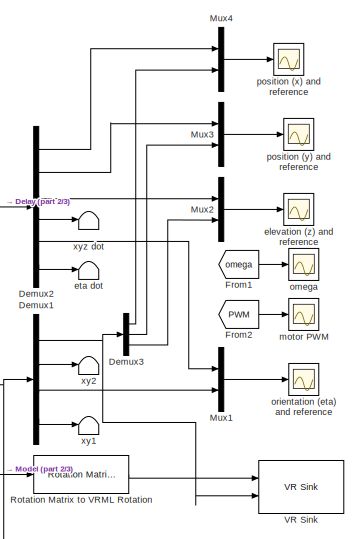
[diagram: root canvas - part 1/3, middle right region]
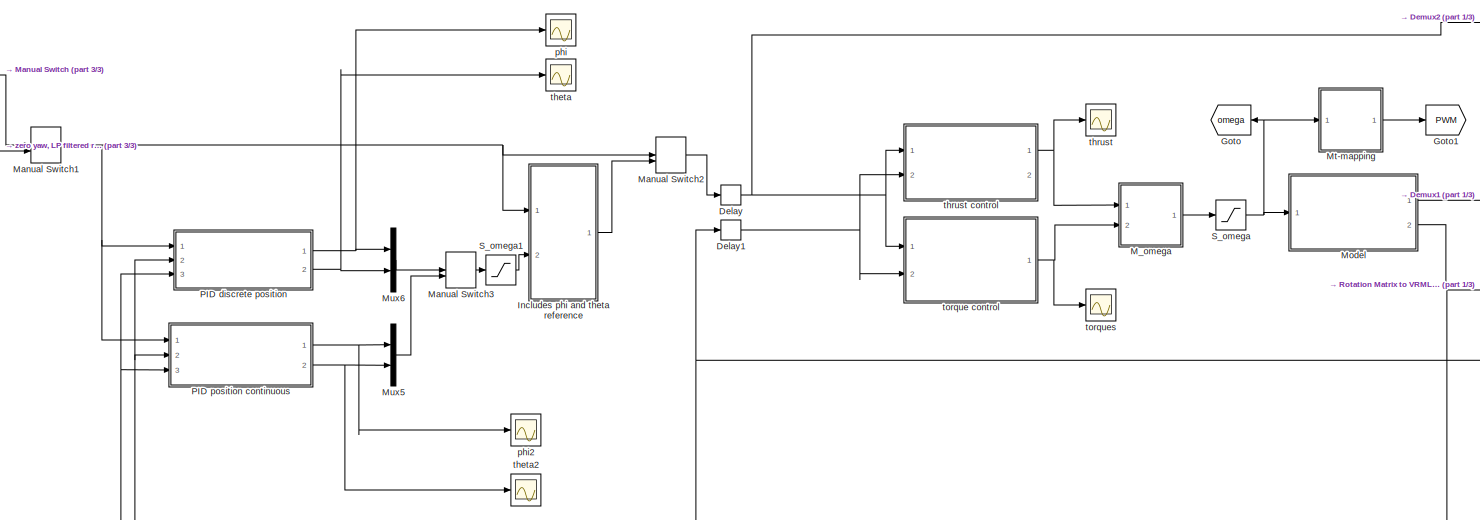
[diagram: root canvas - part 2/3, full width, middle band]
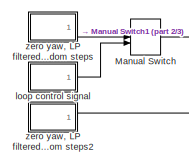
[diagram: root canvas - part 3/3, middle left region]
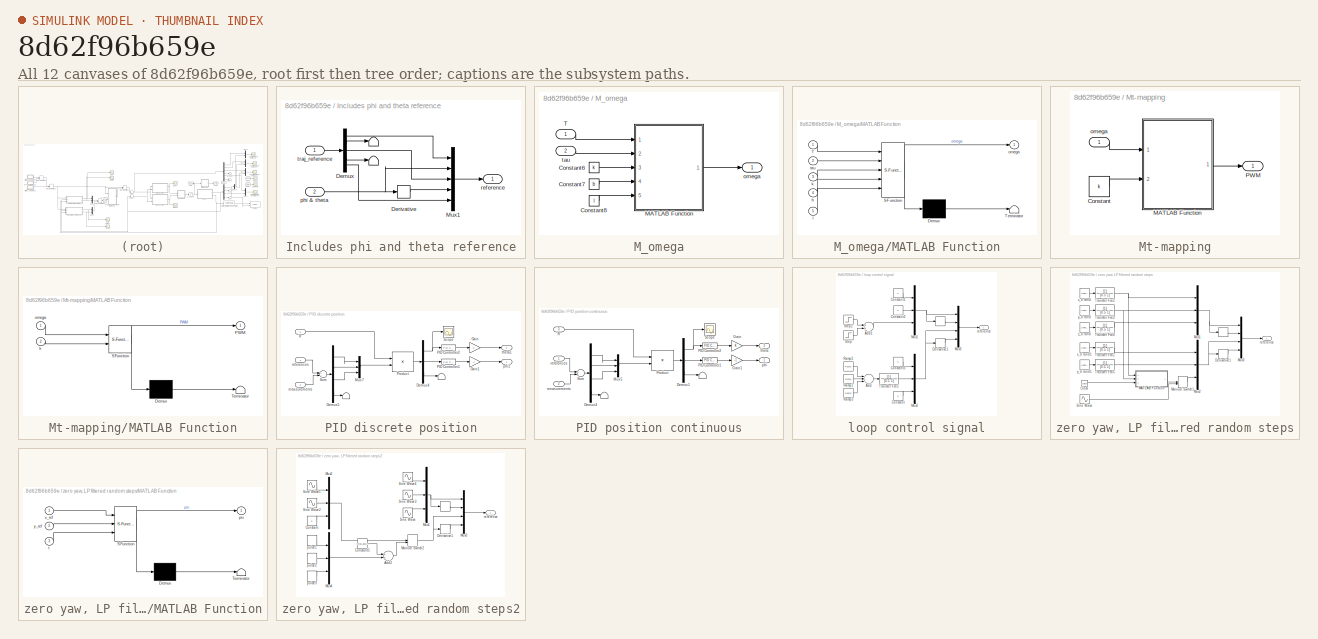
[diagram: thumbnail index - all 12 canvases of the model, root first then tree order]
MODEL slx_8d62f96b659e
KIND model
CONFIG AbsTol = auto
CONFIG FixedStep = auto
CONFIG MaxStep = auto
CONFIG MinStep = auto
CONFIG RelTol = 1e-3
CONFIG SampleTimeConstraint = Unconstrained
CONFIG Solver = VariableStepAuto
CONFIG SolverMode = Auto
CONFIG SolverName = VariableStepAuto
CONFIG StartTime = 0.0
CONFIG StopTime = 50
BLOCK [Terminator]    eta dot
BLOCK [Terminator]    xy1
BLOCK [Terminator]    xy2
BLOCK [Terminator]   xyz dot
BLOCK [Delay] Delay
  DelayLength = 1
  InitialCondition = 0
  InputPortMap = u0
  Ports = [1, 1]
  SampleTime = inner_h
BLOCK [Delay] Delay1
  DelayLength = 1
  InitialCondition = 0
  InputPortMap = u0
  Ports = [1, 1]
  SampleTime = inner_h
BLOCK [Demux] Demux1
  DisplayOption = bar
  Outputs = [3,3,3,3]
  Ports = [1, 4]
BLOCK [Demux] Demux2
  DisplayOption = bar
  Outputs = [1,1,1,3,3,3]
  Ports = [1, 6]
BLOCK [Demux] Demux3
  DisplayOption = bar
  Outputs = [1,1,1]
  Ports = [1, 3]
BLOCK [From] From1
  GotoTag = omega
BLOCK [From] From2
  GotoTag = PWM
BLOCK [Goto] Goto
  GotoTag = omega
BLOCK [Goto] Goto1
  GotoTag = PWM
BLOCK [SubSystem] Includes phi and theta reference
  Ports = [2, 1]
  RequestExecContextInheritance = off
  Variant = off
BLOCK [Terminator] Includes phi and theta reference/ 
BLOCK [Terminator] Includes phi and theta reference/  
BLOCK [Demux] Includes phi and theta reference/Demux
  DisplayOption = bar
  Outputs = [6,2,1,2,1]
  Ports = [1, 5]
BLOCK [Derivative] Includes phi and theta reference/Derivative
BLOCK [Mux] Includes phi and theta reference/Mux1
  DisplayOption = bar
  Inputs = 5
  Ports = [5, 1]
BLOCK [Inport] Includes phi and theta reference/phi & theta
  IconDisplay = Port number
  Port = 2
BLOCK [Outport] Includes phi and theta reference/reference
  IconDisplay = Port number
BLOCK [Inport] Includes phi and theta reference/traj_reference
  IconDisplay = Port number
BLOCK [SubSystem] M_omega
  Ports = [2, 1]
  RequestExecContextInheritance = off
  Variant = off
BLOCK [Constant] M_omega/Constant6
  Value = k
BLOCK [Constant] M_omega/Constant7
  Value = b
BLOCK [Constant] M_omega/Constant8
  Value = l
BLOCK [SubSystem] M_omega/MATLAB Function
  ErrorFcn = Stateflow.Translate.translate
  PermitHierarchicalResolution = ExplicitOnly
  Ports = [5, 1]
  RequestExecContextInheritance = off
  SFBlockType = MATLAB Function
  TreatAsAtomicUnit = on
  Variant = off
BLOCK [Demux] M_omega/MATLAB Function/ Demux 
  Outputs = 1
  Ports = [1, 1]
BLOCK [S-Function] M_omega/MATLAB Function/ SFunction 
  EnableBusSupport = on
  FunctionName = sf_sfun
  PortCounts = [5 2]
  Ports = [5, 2]
  SFunctionDeploymentMode = off
  Tag = Stateflow S-Function inner_pid_discrete_test 2
BLOCK [Terminator] M_omega/MATLAB Function/ Terminator 
BLOCK [Inport] M_omega/MATLAB Function/T
  IconDisplay = Port number
BLOCK [Inport] M_omega/MATLAB Function/b
  IconDisplay = Port number
  Port = 4
BLOCK [Inport] M_omega/MATLAB Function/k
  IconDisplay = Port number
  Port = 3
BLOCK [Inport] M_omega/MATLAB Function/l
  IconDisplay = Port number
  Port = 5
BLOCK [Outport] M_omega/MATLAB Function/omega
  IconDisplay = Port number
BLOCK [Inport] M_omega/MATLAB Function/tau
  IconDisplay = Port number
  Port = 2
BLOCK [Inport] M_omega/T
  IconDisplay = Port number
BLOCK [Outport] M_omega/omega
  IconDisplay = Port number
BLOCK [Inport] M_omega/tau
  IconDisplay = Port number
  Port = 2
BLOCK [ManualSwitch] Manual Switch
BLOCK [ManualSwitch] Manual Switch1
BLOCK [ManualSwitch] Manual Switch2
  CurrentSetting = 0
BLOCK [ManualSwitch] Manual Switch3
BLOCK [ModelReference] Model
  ModelNameDialog = quadcopter_model_c.mdl
  ModelReferenceVersion = 1.156
  Ports = [1, 2]
  Variant = off
BLOCK [SubSystem] Mt-mapping
  Ports = [1, 1]
  RequestExecContextInheritance = off
  Variant = off
BLOCK [Constant] Mt-mapping/Constant
  Value = k
BLOCK [SubSystem] Mt-mapping/MATLAB Function
  ErrorFcn = Stateflow.Translate.translate
  PermitHierarchicalResolution = ExplicitOnly
  Ports = [2, 1]
  RequestExecContextInheritance = off
  SFBlockType = MATLAB Function
  TreatAsAtomicUnit = on
  Variant = off
BLOCK [Demux] Mt-mapping/MATLAB Function/ Demux 
  Outputs = 1
  Ports = [1, 1]
BLOCK [S-Function] Mt-mapping/MATLAB Function/ SFunction 
  EnableBusSupport = on
  FunctionName = sf_sfun
  PortCounts = [2 2]
  Ports = [2, 2]
  SFunctionDeploymentMode = off
  Tag = Stateflow S-Function inner_pid_discrete_test 3
BLOCK [Terminator] Mt-mapping/MATLAB Function/ Terminator 
BLOCK [Outport] Mt-mapping/MATLAB Function/PWM
  IconDisplay = Port number
BLOCK [Inport] Mt-mapping/MATLAB Function/k
  IconDisplay = Port number
  Port = 2
BLOCK [Inport] Mt-mapping/MATLAB Function/omega
  IconDisplay = Port number
BLOCK [Outport] Mt-mapping/PWM
  IconDisplay = Port number
BLOCK [Inport] Mt-mapping/omega
  IconDisplay = Port number
BLOCK [Mux] Mux1
  DisplayOption = bar
  Inputs = 2
  Ports = [2, 1]
BLOCK [Mux] Mux2
  DisplayOption = bar
  Inputs = 2
  Ports = [2, 1]
BLOCK [Mux] Mux3
  DisplayOption = bar
  Inputs = 2
  Ports = [2, 1]
BLOCK [Mux] Mux4
  DisplayOption = bar
  Inputs = 2
  Ports = [2, 1]
BLOCK [Mux] Mux5
  DisplayOption = bar
  Inputs = 2
  Ports = [2, 1]
BLOCK [Mux] Mux6
  DisplayOption = bar
  Inputs = 2
  Ports = [2, 1]
BLOCK [SubSystem] PID discrete position
  Ports = [3, 2]
  RequestExecContextInheritance = off
  Variant = off
BLOCK [Terminator] PID discrete position/      
BLOCK [Terminator] PID discrete position/       
BLOCK [Demux] PID discrete position/Demux4
  DisplayOption = bar
  Outputs = [1,1,1]
  Ports = [1, 3]
BLOCK [Demux] PID discrete position/Demux5
  DisplayOption = bar
  Outputs = [1,1,1,9]
  Ports = [1, 4]
BLOCK [Gain] PID discrete position/Gain
  OutDataTypeStr = Inherit: Inherit via internal rule
  ParamDataTypeStr = Inherit: Inherit via internal rule
  SaturateOnIntegerOverflow = off
BLOCK [Gain] PID discrete position/Gain1
  Gain = -1
  OutDataTypeStr = Inherit: Inherit via internal rule
  ParamDataTypeStr = Inherit: Inherit via internal rule
  SaturateOnIntegerOverflow = off
BLOCK [Mux] PID discrete position/Mux7
  DisplayOption = bar
  Inputs = 3
  Ports = [3, 1]
BLOCK [Reference] PID discrete position/PID Controller1  REF=simulink/Continuous/PID Controller
  Ports = [1, 1]
  SourceBlock = simulink/Continuous/PID Controller
  SourceType = PID 1dof
BLOCK [Reference] PID discrete position/PID Controller2  REF=simulink/Continuous/PID Controller
  Ports = [1, 1]
  SourceBlock = simulink/Continuous/PID Controller
  SourceType = PID 1dof
BLOCK [Product] PID discrete position/Product
  InputSameDT = off
  Inputs = /*
  Multiplication = Matrix(*)
  OutDataTypeStr = Inherit: Inherit via internal rule
  Ports = [2, 1]
  RndMeth = Floor
  SaturateOnIntegerOverflow = off
BLOCK [Inport] PID discrete position/R
  IconDisplay = Port number
  Port = 3
BLOCK [Scope] PID discrete position/Scope
  Ports = [1]
  ScopeSpecificationString = Simulink.scopes.TimeScopeBlockCfg('CurrentConfiguration', extmgr.ConfigurationSet(extmgr.Configuration('Core','General UI',true),extmgr.Configuration('Core','Source UI',true),extmgr.Configuration('Sources','WiredSimulink',true,'DataLoggingVariableName','ScopeData2'),extmgr.Configuration('Visuals','Time Domain',true,'SerializedDisplays',{struct('MinYLimReal','-291.58808','MaxYLimReal','89.44892','Y...<+1407ch>
BLOCK [Sum] PID discrete position/Sum
  InputSameDT = off
  Inputs = +-
  OutDataTypeStr = Inherit: Inherit via internal rule
  Ports = [2, 1]
  SaturateOnIntegerOverflow = off
BLOCK [Inport] PID discrete position/measurements
  IconDisplay = Port number
  Port = 2
BLOCK [Outport] PID discrete position/phi1
  IconDisplay = Port number
BLOCK [Inport] PID discrete position/references
  IconDisplay = Port number
BLOCK [Outport] PID discrete position/theta1
  IconDisplay = Port number
  Port = 2
BLOCK [SubSystem] PID position continuous
  Ports = [3, 2]
  RequestExecContextInheritance = off
  Variant = off
BLOCK [Terminator] PID position continuous/      
BLOCK [Terminator] PID position continuous/       
BLOCK [Demux] PID position continuous/Demux1
  DisplayOption = bar
  Outputs = [1,1,1]
  Ports = [1, 3]
BLOCK [Demux] PID position continuous/Demux4
  DisplayOption = bar
  Outputs = [1,1,1,9]
  Ports = [1, 4]
BLOCK [Gain] PID position continuous/Gain
  OutDataTypeStr = Inherit: Inherit via internal rule
  ParamDataTypeStr = Inherit: Inherit via internal rule
  SaturateOnIntegerOverflow = off
BLOCK [Gain] PID position continuous/Gain1
  Gain = -1
  OutDataTypeStr = Inherit: Inherit via internal rule
  ParamDataTypeStr = Inherit: Inherit via internal rule
  SaturateOnIntegerOverflow = off
BLOCK [Mux] PID position continuous/Mux5
  DisplayOption = bar
  Inputs = 3
  Ports = [3, 1]
BLOCK [Reference] PID position continuous/PID Controller1  REF=simulink/Continuous/PID Controller
  Ports = [1, 1]
  SourceBlock = simulink/Continuous/PID Controller
  SourceType = PID 1dof
BLOCK [Reference] PID position continuous/PID Controller2  REF=simulink/Continuous/PID Controller
  Ports = [1, 1]
  SourceBlock = simulink/Continuous/PID Controller
  SourceType = PID 1dof
BLOCK [Product] PID position continuous/Product
  InputSameDT = off
  Inputs = /*
  Multiplication = Matrix(*)
  OutDataTypeStr = Inherit: Inherit via internal rule
  Ports = [2, 1]
  RndMeth = Floor
  SaturateOnIntegerOverflow = off
BLOCK [Inport] PID position continuous/R
  IconDisplay = Port number
  Port = 3
BLOCK [Scope] PID position continuous/Scope
  Ports = [1]
  ScopeSpecificationString = Simulink.scopes.TimeScopeBlockCfg('CurrentConfiguration', extmgr.ConfigurationSet(extmgr.Configuration('Core','General UI',true),extmgr.Configuration('Core','Source UI',true),extmgr.Configuration('Sources','WiredSimulink',true,'DataLoggingVariableName','ScopeData1'),extmgr.Configuration('Visuals','Time Domain',true,'SerializedDisplays',{struct('MinYLimReal','-1.8271','MaxYLimReal','2.09045','YLabe...<+1393ch>
BLOCK [Sum] PID position continuous/Sum
  InputSameDT = off
  Inputs = +-
  OutDataTypeStr = Inherit: Inherit via internal rule
  Ports = [2, 1]
  SaturateOnIntegerOverflow = off
BLOCK [Inport] PID position continuous/measurements
  IconDisplay = Port number
  Port = 2
BLOCK [Outport] PID position continuous/phi
  IconDisplay = Port number
BLOCK [Inport] PID position continuous/references
  IconDisplay = Port number
BLOCK [Outport] PID position continuous/theta
  IconDisplay = Port number
  Port = 2
BLOCK [Reference] Rotation Matrix to VRML Rotation  REF=vrlib/Utilities/Rotation Matrix
to VRML Rotation
  Ports = [1, 1]
  SourceBlock = vrlib/Utilities/Rotation Matrix\nto VRML Rotation
  SourceType = Rotation Matrix to VRML Rotation
BLOCK [Saturate] S_omega
  InputPortMap = u0
  LowerLimit = inner_minlim
  Ports = [1, 1]
  UpperLimit = inner_maxlim
BLOCK [Saturate] S_omega1
  InputPortMap = u0
  Ports = [1, 1]
BLOCK [Reference] VR Sink  REF=vrlib/VR Sink
  InstantiateOnLoad = on
  Ports = [2]
  SourceBlock = vrlib/VR Sink
  SourceType = Virtual Reality Sink
BLOCK [Scope] elevation (z) and reference
  Ports = [1]
  ScopeSpecificationString = Simulink.scopes.TimeScopeBlockCfg('CurrentConfiguration', extmgr.ConfigurationSet(extmgr.Configuration('Core','General UI',true),extmgr.Configuration('Core','Source UI',true),extmgr.Configuration('Sources','WiredSimulink',true,'DataLoggingVariableName','ScopeData1','DataLoggingSaveFormat','Array','DataLoggingDecimation','1','DataLoggingDecimateData',true),extmgr.Configuration('Visuals','Time Domai...<+1540ch>
BLOCK [SubSystem] loop control signal
  Ports = [0, 1]
  RequestExecContextInheritance = off
  Variant = off
BLOCK [Derivative] loop control signal/        
BLOCK [Sum] loop control signal/Add
  InputSameDT = off
  Inputs = +++
  OutDataTypeStr = Inherit: Inherit via internal rule
  Ports = [3, 1]
  SaturateOnIntegerOverflow = off
BLOCK [Sum] loop control signal/Add1
  InputSameDT = off
  OutDataTypeStr = Inherit: Inherit via internal rule
  Ports = [2, 1]
  SaturateOnIntegerOverflow = off
BLOCK [Constant] loop control signal/Constant
  Value = 0
BLOCK [Constant] loop control signal/Constant1
  Value = 0
BLOCK [Constant] loop control signal/Constant2
  Value = 0
BLOCK [Constant] loop control signal/Constant3
  Value = 0
BLOCK [Derivative] loop control signal/Derivative1
BLOCK [Mux] loop control signal/Mux1
  DisplayOption = bar
  Inputs = 3
  Ports = [3, 1]
BLOCK [Mux] loop control signal/Mux2
  DisplayOption = bar
  Inputs = 3
  Ports = [3, 1]
BLOCK [Mux] loop control signal/Mux3
  DisplayOption = bar
  Inputs = [3,3,3,3]
  Ports = [4, 1]
BLOCK [Reference] loop control signal/Ramp1  REF=simulink/Sources/Ramp
  Ports = [0, 1]
  SourceBlock = simulink/Sources/Ramp
  SourceType = Ramp
BLOCK [Reference] loop control signal/Ramp2  REF=simulink/Sources/Ramp
  Ports = [0, 1]
  SourceBlock = simulink/Sources/Ramp
  SourceType = Ramp
BLOCK [Reference] loop control signal/Ramp3  REF=simulink/Sources/Ramp
  Ports = [0, 1]
  SourceBlock = simulink/Sources/Ramp
  SourceType = Ramp
BLOCK [Step] loop control signal/Step
  After = -2
  SampleTime = 0
  Time = 5.5
BLOCK [Step] loop control signal/Step2
  After = 2
  SampleTime = 0
  Time = 3.6
BLOCK [TransferFcn] loop control signal/Transfer Fcn1
  Denominator = [0.1 1]
BLOCK [Outport] loop control signal/reference
  IconDisplay = Port number
BLOCK [Scope] motor PWM
  Ports = [1]
  ScopeSpecificationString = Simulink.scopes.TimeScopeBlockCfg('CurrentConfiguration', extmgr.ConfigurationSet(extmgr.Configuration('Core','General UI',true),extmgr.Configuration('Core','Source UI',true),extmgr.Configuration('Sources','WiredSimulink',true,'DataLoggingVariableName','ScopeData1','DataLoggingSaveFormat','Array','DataLoggingDecimation','1','DataLoggingDecimateData',true),extmgr.Configuration('Visuals','Time Domai...<+1562ch>
BLOCK [Scope] omega 
  Ports = [1]
  ScopeSpecificationString = Simulink.scopes.TimeScopeBlockCfg('CurrentConfiguration', extmgr.ConfigurationSet(extmgr.Configuration('Core','General UI',true),extmgr.Configuration('Core','Source UI',true),extmgr.Configuration('Sources','WiredSimulink',true,'DataLoggingVariableName','ScopeData2','DataLoggingSaveFormat','Array','DataLoggingDecimation','1','DataLoggingDecimateData',true),extmgr.Configuration('Visuals','Time Domai...<+1518ch>
BLOCK [Scope] orientation (eta) and reference
  Ports = [1]
  ScopeSpecificationString = Simulink.scopes.TimeScopeBlockCfg('CurrentConfiguration', extmgr.ConfigurationSet(extmgr.Configuration('Core','General UI',true),extmgr.Configuration('Core','Source UI',true),extmgr.Configuration('Sources','WiredSimulink',true),extmgr.Configuration('Visuals','Time Domain',true,'SerializedDisplays',{struct('MinYLimReal','-0.81663','MaxYLimReal','0.81678','YLabelReal','','MinYLimMag','0.00000','MaxY...<+1468ch>
BLOCK [Scope] phi
  Ports = [1]
  ScopeSpecificationString = Simulink.scopes.TimeScopeBlockCfg('CurrentConfiguration', extmgr.ConfigurationSet(extmgr.Configuration('Core','General UI',true),extmgr.Configuration('Core','Source UI',true),extmgr.Configuration('Sources','WiredSimulink',true,'DataLoggingVariableName','ScopeData2'),extmgr.Configuration('Visuals','Time Domain',true,'SerializedDisplays',{struct('MinYLimReal','-66.37749','MaxYLimReal','7.37528','YLa...<+1461ch>
BLOCK [Scope] phi2
  Ports = [1]
  ScopeSpecificationString = Simulink.scopes.TimeScopeBlockCfg('CurrentConfiguration', extmgr.ConfigurationSet(extmgr.Configuration('Core','General UI',true),extmgr.Configuration('Core','Source UI',true),extmgr.Configuration('Sources','WiredSimulink',true,'DataLoggingVariableName','ScopeData2'),extmgr.Configuration('Visuals','Time Domain',true,'SerializedDisplays',{struct('MinYLimReal','-3.2681','MaxYLimReal','2.26169','YLabe...<+1408ch>
BLOCK [Scope] position (x) and  reference
  Ports = [1]
  ScopeSpecificationString = Simulink.scopes.TimeScopeBlockCfg('CurrentConfiguration', extmgr.ConfigurationSet(extmgr.Configuration('Core','General UI',true),extmgr.Configuration('Core','Source UI',true),extmgr.Configuration('Sources','WiredSimulink',true,'DataLoggingVariableName','ScopeData1','DataLoggingSaveFormat','Array','DataLoggingDecimation','1','DataLoggingDecimateData',true),extmgr.Configuration('Visuals','Time Domai...<+1544ch>
BLOCK [Scope] position (y) and  reference
  Ports = [1]
  ScopeSpecificationString = Simulink.scopes.TimeScopeBlockCfg('CurrentConfiguration', extmgr.ConfigurationSet(extmgr.Configuration('Core','General UI',true),extmgr.Configuration('Core','Source UI',true),extmgr.Configuration('Sources','WiredSimulink',true,'DataLoggingVariableName','ScopeData3','DataLoggingSaveFormat','Array','DataLoggingDecimation','1','DataLoggingDecimateData',true),extmgr.Configuration('Visuals','Time Domai...<+1536ch>
BLOCK [Scope] theta
  Ports = [1]
  ScopeSpecificationString = Simulink.scopes.TimeScopeBlockCfg('CurrentConfiguration', extmgr.ConfigurationSet(extmgr.Configuration('Core','General UI',true),extmgr.Configuration('Core','Source UI',true),extmgr.Configuration('Sources','WiredSimulink',true,'DataLoggingVariableName','ScopeData1'),extmgr.Configuration('Visuals','Time Domain',true,'SerializedDisplays',{struct('MinYLimReal','-1.74435','MaxYLimReal','1.63306','YLab...<+1410ch>
BLOCK [Scope] theta2
  Ports = [1]
  ScopeSpecificationString = Simulink.scopes.TimeScopeBlockCfg('CurrentConfiguration', extmgr.ConfigurationSet(extmgr.Configuration('Core','General UI',true),extmgr.Configuration('Core','Source UI',true),extmgr.Configuration('Sources','WiredSimulink',true,'DataLoggingVariableName','ScopeData1'),extmgr.Configuration('Visuals','Time Domain',true,'SerializedDisplays',{struct('MinYLimReal','-1.73597','MaxYLimReal','1.63177','YLab...<+1411ch>
BLOCK [Scope] thrust
  Ports = [1]
  ScopeSpecificationString = Simulink.scopes.TimeScopeBlockCfg('CurrentConfiguration', extmgr.ConfigurationSet(extmgr.Configuration('Core','General UI',true),extmgr.Configuration('Core','Source UI',true),extmgr.Configuration('Sources','WiredSimulink',true,'DataLoggingVariableName','ScopeData1','DataLoggingSaveFormat','Array','DataLoggingDecimation','1','DataLoggingDecimateData',true),extmgr.Configuration('Visuals','Time Domai...<+1512ch>
BLOCK [ModelReference] thrust control
  ModelNameDialog = inner_PD_thrust_d.slx
  ModelReferenceVersion = 1.81
  Ports = [2, 2]
  Variant = off
BLOCK [ModelReference] torque control
  ModelNameDialog = inner_PD_angle_d.slx
  ModelReferenceVersion = 1.85
  Ports = [2, 1]
  Variant = off
BLOCK [Scope] torques
  Ports = [1]
  ScopeSpecificationString = Simulink.scopes.TimeScopeBlockCfg('CurrentConfiguration', extmgr.ConfigurationSet(extmgr.Configuration('Core','General UI',true),extmgr.Configuration('Core','Source UI',true),extmgr.Configuration('Sources','WiredSimulink',true,'DataLoggingVariableName','ScopeData3','DataLoggingSaveFormat','Array','DataLoggingDecimation','1','DataLoggingDecimateData',true),extmgr.Configuration('Visuals','Time Domai...<+1492ch>
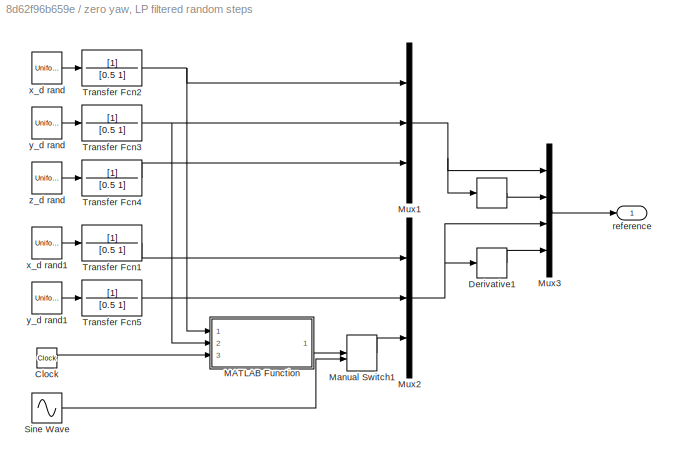
BLOCK [SubSystem] zero yaw, LP filtered random steps
  Ports = [0, 1]
  RequestExecContextInheritance = off
  Variant = off
BLOCK [Derivative] zero yaw, LP filtered random steps/        
BLOCK [Clock] zero yaw, LP filtered random steps/Clock
BLOCK [Derivative] zero yaw, LP filtered random steps/Derivative1
BLOCK [SubSystem] zero yaw, LP filtered random steps/MATLAB Function
  ErrorFcn = Stateflow.Translate.translate
  PermitHierarchicalResolution = ExplicitOnly
  Ports = [3, 1]
  RequestExecContextInheritance = off
  SFBlockType = MATLAB Function
  TreatAsAtomicUnit = on
  Variant = off
BLOCK [Demux] zero yaw, LP filtered random steps/MATLAB Function/ Demux 
  Outputs = 1
  Ports = [1, 1]
BLOCK [S-Function] zero yaw, LP filtered random steps/MATLAB Function/ SFunction 
  EnableBusSupport = on
  FunctionName = sf_sfun
  PortCounts = [3 2]
  Ports = [3, 2]
  SFunctionDeploymentMode = off
  Tag = Stateflow S-Function inner_pid_discrete_test 1
BLOCK [Terminator] zero yaw, LP filtered random steps/MATLAB Function/ Terminator 
BLOCK [Outport] zero yaw, LP filtered random steps/MATLAB Function/psi
  IconDisplay = Port number
BLOCK [Inport] zero yaw, LP filtered random steps/MATLAB Function/t
  IconDisplay = Port number
  Port = 3
BLOCK [Inport] zero yaw, LP filtered random steps/MATLAB Function/x_ref
  IconDisplay = Port number
BLOCK [Inport] zero yaw, LP filtered random steps/MATLAB Function/y_ref
  IconDisplay = Port number
  Port = 2
BLOCK [ManualSwitch] zero yaw, LP filtered random steps/Manual Switch1
  CurrentSetting = 0
BLOCK [Mux] zero yaw, LP filtered random steps/Mux1
  DisplayOption = bar
  Inputs = 3
  Ports = [3, 1]
BLOCK [Mux] zero yaw, LP filtered random steps/Mux2
  DisplayOption = bar
  Inputs = 3
  Ports = [3, 1]
BLOCK [Mux] zero yaw, LP filtered random steps/Mux3
  DisplayOption = bar
  Inputs = [3,3,3,3]
  Ports = [4, 1]
BLOCK [Sin] zero yaw, LP filtered random steps/Sine Wave
  Amplitude = 0.5
  Frequency = 0.5
  Ports = [0, 1]
  SampleTime = 0
BLOCK [TransferFcn] zero yaw, LP filtered random steps/Transfer Fcn1
  Denominator = [0.5 1]
BLOCK [TransferFcn] zero yaw, LP filtered random steps/Transfer Fcn2
  Denominator = [0.5 1]
BLOCK [TransferFcn] zero yaw, LP filtered random steps/Transfer Fcn3
  Denominator = [0.5 1]
BLOCK [TransferFcn] zero yaw, LP filtered random steps/Transfer Fcn4
  Denominator = [0.5 1]
BLOCK [TransferFcn] zero yaw, LP filtered random steps/Transfer Fcn5
  Denominator = [0.5 1]
BLOCK [Outport] zero yaw, LP filtered random steps/reference
  IconDisplay = Port number
BLOCK [UniformRandomNumber] zero yaw, LP filtered random steps/x_d rand
  Maximum = 3
  Minimum = -3
  SampleTime = 10
  Seed = 6
BLOCK [UniformRandomNumber] zero yaw, LP filtered random steps/x_d rand1
  Maximum = 0.1
  Minimum = -0.1
  SampleTime = 10
BLOCK [UniformRandomNumber] zero yaw, LP filtered random steps/y_d rand
  Maximum = 3
  Minimum = -3
  SampleTime = 10
  Seed = 4
BLOCK [UniformRandomNumber] zero yaw, LP filtered random steps/y_d rand1
  Maximum = 0.1
  Minimum = -0.1
  SampleTime = 10
  Seed = 1
BLOCK [UniformRandomNumber] zero yaw, LP filtered random steps/z_d rand
  Maximum = 3
  Minimum = 0
  SampleTime = 10
  Seed = 2
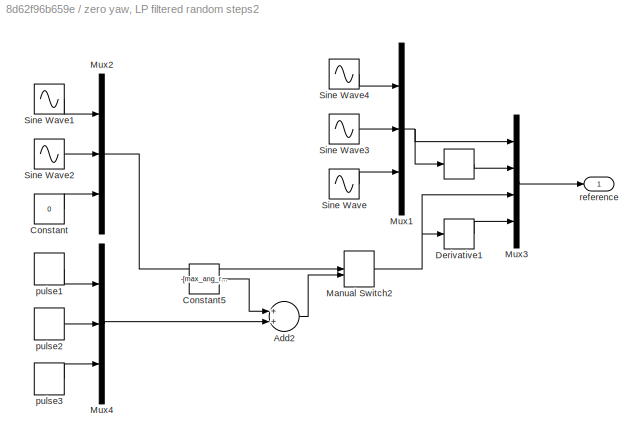
BLOCK [SubSystem] zero yaw, LP filtered random steps2
  Ports = [0, 1]
  RequestExecContextInheritance = off
  Variant = off
BLOCK [Derivative] zero yaw, LP filtered random steps2/        
BLOCK [Sum] zero yaw, LP filtered random steps2/Add2
  InputSameDT = off
  OutDataTypeStr = Inherit: Inherit via internal rule
  Ports = [2, 1]
  SaturateOnIntegerOverflow = off
BLOCK [Constant] zero yaw, LP filtered random steps2/Constant
  Value = 0
BLOCK [Constant] zero yaw, LP filtered random steps2/Constant5
  Value = -[max_ang_ref,max_ang_ref,max_ang_ref]
BLOCK [Derivative] zero yaw, LP filtered random steps2/Derivative1
BLOCK [ManualSwitch] zero yaw, LP filtered random steps2/Manual Switch2
BLOCK [Mux] zero yaw, LP filtered random steps2/Mux1
  DisplayOption = bar
  Inputs = 3
  Ports = [3, 1]
BLOCK [Mux] zero yaw, LP filtered random steps2/Mux2
  DisplayOption = bar
  Inputs = 3
  Ports = [3, 1]
BLOCK [Mux] zero yaw, LP filtered random steps2/Mux3
  DisplayOption = bar
  Inputs = [3,3,3,3]
  Ports = [4, 1]
BLOCK [Mux] zero yaw, LP filtered random steps2/Mux4
  DisplayOption = bar
  Inputs = 3
  Ports = [3, 1]
BLOCK [Sin] zero yaw, LP filtered random steps2/Sine Wave
  Bias = 2
  Ports = [0, 1]
  SampleTime = 0
BLOCK [Sin] zero yaw, LP filtered random steps2/Sine Wave1
  Amplitude = max_ang_ref
  Ports = [0, 1]
  SampleTime = 0
BLOCK [Sin] zero yaw, LP filtered random steps2/Sine Wave2
  Amplitude = max_ang_ref
  Phase = pi/2
  Ports = [0, 1]
BLOCK [Sin] zero yaw, LP filtered random steps2/Sine Wave3
  Phase = pi/2
  Ports = [0, 1]
  SampleTime = 0
BLOCK [Sin] zero yaw, LP filtered random steps2/Sine Wave4
  Frequency = 0.6
  Ports = [0, 1]
  SampleTime = 0
BLOCK [DiscretePulseGenerator] zero yaw, LP filtered random steps2/pulse1
  Amplitude = max_ang_ref*2
  Period = 10
  Ports = [0, 1]
  PulseType = Time based
  PulseWidth = 50
BLOCK [DiscretePulseGenerator] zero yaw, LP filtered random steps2/pulse2
  Amplitude = max_ang_ref*2
  Period = 10
  Ports = [0, 1]
  PulseType = Time based
  PulseWidth = 50
BLOCK [DiscretePulseGenerator] zero yaw, LP filtered random steps2/pulse3
  Amplitude = max_ang_ref*2
  Period = 10
  Ports = [0, 1]
  PulseType = Time based
  PulseWidth = 50
BLOCK [Outport] zero yaw, LP filtered random steps2/reference
  IconDisplay = Port number
NET Delay1:1 -> thrust control:2, torque control:2
NET Delay:1 -> Demux2:1, thrust control:1, torque control:1
NET Demux1:1 -> Demux3:1, VR Sink:2
LINE Demux1:2 ->    xy2:1
LINE Demux1:3 -> Mux1:2
LINE Demux1:4 ->    xy1:1
LINE Demux2:1 -> Mux4:1
LINE Demux2:2 -> Mux3:1
LINE Demux2:3 -> Mux2:1
LINE Demux2:4 ->   xyz dot:1
LINE Demux2:5 -> Mux1:1
LINE Demux2:6 ->    eta dot:1
LINE Demux3:1 -> Mux4:2
LINE Demux3:2 -> Mux3:2
LINE Demux3:3 -> Mux2:2
LINE From1:1 -> omega :1
LINE From2:1 -> motor PWM:1
LINE Includes phi and theta reference/Demux:1 -> Includes phi and theta reference/Mux1:1
LINE Includes phi and theta reference/Demux:2 -> Includes phi and theta reference/ :1
LINE Includes phi and theta reference/Demux:3 -> Includes phi and theta reference/Mux1:3
LINE Includes phi and theta reference/Demux:4 -> Includes phi and theta reference/  :1
LINE Includes phi and theta reference/Demux:5 -> Includes phi and theta reference/Mux1:5
LINE Includes phi and theta reference/Derivative:1 -> Includes phi and theta reference/Mux1:4
LINE Includes phi and theta reference/Mux1:1 -> Includes phi and theta reference/reference:1
NET Includes phi and theta reference/phi & theta:1 -> Includes phi and theta reference/Derivative:1, Includes phi and theta reference/Mux1:2
LINE Includes phi and theta reference/traj_reference:1 -> Includes phi and theta reference/Demux:1
LINE Includes phi and theta reference:1 -> Manual Switch2:2
LINE M_omega/Constant6:1 -> M_omega/MATLAB Function:3
LINE M_omega/Constant7:1 -> M_omega/MATLAB Function:4
LINE M_omega/Constant8:1 -> M_omega/MATLAB Function:5
LINE M_omega/MATLAB Function:1 -> M_omega/omega:1
LINE M_omega/T:1 -> M_omega/MATLAB Function:1
LINE M_omega/tau:1 -> M_omega/MATLAB Function:2
LINE M_omega:1 -> S_omega:1
NET Manual Switch1:1 -> Includes phi and theta reference:1, Manual Switch2:1, PID discrete position:1, PID position continuous:1
LINE Manual Switch2:1 -> Delay:1
LINE Manual Switch3:1 -> S_omega1:1
LINE Manual Switch:1 -> Manual Switch1:1
NET Model:1 -> Delay1:1, Demux1:1, PID discrete position:2, PID position continuous:2
NET Model:2 -> PID discrete position:3, PID position continuous:3, Rotation Matrix to VRML Rotation:1
LINE Mt-mapping/Constant:1 -> Mt-mapping/MATLAB Function:2
LINE Mt-mapping/MATLAB Function:1 -> Mt-mapping/PWM:1
LINE Mt-mapping/omega:1 -> Mt-mapping/MATLAB Function:1
LINE Mt-mapping:1 -> Goto1:1
LINE Mux1:1 -> orientation (eta) and reference:1
LINE Mux2:1 -> elevation (z) and reference:1
LINE Mux3:1 -> position (y) and  reference:1
LINE Mux4:1 -> position (x) and  reference:1
LINE Mux5:1 -> Manual Switch3:2
LINE Mux6:1 -> Manual Switch3:1
NET PID discrete position/Demux4:1 -> PID discrete position/PID Controller2:1, PID discrete position/Scope:1
LINE PID discrete position/Demux4:2 -> PID discrete position/PID Controller1:1
LINE PID discrete position/Demux4:3 -> PID discrete position/       :1
LINE PID discrete position/Demux5:1 -> PID discrete position/Mux7:1
LINE PID discrete position/Demux5:2 -> PID discrete position/Mux7:2
LINE PID discrete position/Demux5:3 -> PID discrete position/Mux7:3
LINE PID discrete position/Demux5:4 -> PID discrete position/      :1
LINE PID discrete position/Gain1:1 -> PID discrete position/phi1:1
LINE PID discrete position/Gain:1 -> PID discrete position/theta1:1
LINE PID discrete position/Mux7:1 -> PID discrete position/Product:2
LINE PID discrete position/PID Controller1:1 -> PID discrete position/Gain1:1
LINE PID discrete position/PID Controller2:1 -> PID discrete position/Gain:1
LINE PID discrete position/Product:1 -> PID discrete position/Demux4:1
LINE PID discrete position/R:1 -> PID discrete position/Product:1
LINE PID discrete position/Sum:1 -> PID discrete position/Demux5:1
LINE PID discrete position/measurements:1 -> PID discrete position/Sum:2
LINE PID discrete position/references:1 -> PID discrete position/Sum:1
NET PID discrete position:1 -> Mux6:1, phi:1
NET PID discrete position:2 -> Mux6:2, theta:1
NET PID position continuous/Demux1:1 -> PID position continuous/PID Controller2:1, PID position continuous/Scope:1
LINE PID position continuous/Demux1:2 -> PID position continuous/PID Controller1:1
LINE PID position continuous/Demux1:3 -> PID position continuous/       :1
LINE PID position continuous/Demux4:1 -> PID position continuous/Mux5:1
LINE PID position continuous/Demux4:2 -> PID position continuous/Mux5:2
LINE PID position continuous/Demux4:3 -> PID position continuous/Mux5:3
LINE PID position continuous/Demux4:4 -> PID position continuous/      :1
LINE PID position continuous/Gain1:1 -> PID position continuous/phi:1
LINE PID position continuous/Gain:1 -> PID position continuous/theta:1
LINE PID position continuous/Mux5:1 -> PID position continuous/Product:2
LINE PID position continuous/PID Controller1:1 -> PID position continuous/Gain1:1
LINE PID position continuous/PID Controller2:1 -> PID position continuous/Gain:1
LINE PID position continuous/Product:1 -> PID position continuous/Demux1:1
LINE PID position continuous/R:1 -> PID position continuous/Product:1
LINE PID position continuous/Sum:1 -> PID position continuous/Demux4:1
LINE PID position continuous/measurements:1 -> PID position continuous/Sum:2
LINE PID position continuous/references:1 -> PID position continuous/Sum:1
NET PID position continuous:1 -> Mux5:1, phi2:1
NET PID position continuous:2 -> Mux5:2, theta2:1
LINE Rotation Matrix to VRML Rotation:1 -> VR Sink:1
LINE S_omega1:1 -> Includes phi and theta reference:2
NET S_omega:1 -> Goto:1, Model:1, Mt-mapping:1
LINE loop control signal/        :1 -> loop control signal/Mux3:2
LINE loop control signal/Add1:1 -> loop control signal/Mux1:3
LINE loop control signal/Add:1 -> loop control signal/Transfer Fcn1:1
LINE loop control signal/Constant1:1 -> loop control signal/Mux1:1
LINE loop control signal/Constant2:1 -> loop control signal/Mux1:2
LINE loop control signal/Constant3:1 -> loop control signal/Mux2:1
LINE loop control signal/Constant:1 -> loop control signal/Mux2:3
LINE loop control signal/Derivative1:1 -> loop control signal/Mux3:4
NET loop control signal/Mux1:1 -> loop control signal/        :1, loop control signal/Mux3:1
NET loop control signal/Mux2:1 -> loop control signal/Derivative1:1, loop control signal/Mux3:3
LINE loop control signal/Mux3:1 -> loop control signal/reference:1
LINE loop control signal/Ramp1:1 -> loop control signal/Add:2
LINE loop control signal/Ramp2:1 -> loop control signal/Add:1
LINE loop control signal/Ramp3:1 -> loop control signal/Add:3
LINE loop control signal/Step2:1 -> loop control signal/Add1:1
LINE loop control signal/Step:1 -> loop control signal/Add1:2
LINE loop control signal/Transfer Fcn1:1 -> loop control signal/Mux2:2
LINE loop control signal:1 -> Manual Switch:2
NET thrust control:1 -> M_omega:1, thrust:1
NET torque control:1 -> M_omega:2, torques:1
LINE zero yaw, LP filtered random steps/        :1 -> zero yaw, LP filtered random steps/Mux3:2
LINE zero yaw, LP filtered random steps/Clock:1 -> zero yaw, LP filtered random steps/MATLAB Function:3
LINE zero yaw, LP filtered random steps/Derivative1:1 -> zero yaw, LP filtered random steps/Mux3:4
LINE zero yaw, LP filtered random steps/MATLAB Function:1 -> zero yaw, LP filtered random steps/Manual Switch1:1
LINE zero yaw, LP filtered random steps/Manual Switch1:1 -> zero yaw, LP filtered random steps/Mux2:3
NET zero yaw, LP filtered random steps/Mux1:1 -> zero yaw, LP filtered random steps/        :1, zero yaw, LP filtered random steps/Mux3:1
NET zero yaw, LP filtered random steps/Mux2:1 -> zero yaw, LP filtered random steps/Derivative1:1, zero yaw, LP filtered random steps/Mux3:3
LINE zero yaw, LP filtered random steps/Mux3:1 -> zero yaw, LP filtered random steps/reference:1
LINE zero yaw, LP filtered random steps/Sine Wave:1 -> zero yaw, LP filtered random steps/Manual Switch1:2
LINE zero yaw, LP filtered random steps/Transfer Fcn1:1 -> zero yaw, LP filtered random steps/Mux2:1
NET zero yaw, LP filtered random steps/Transfer Fcn2:1 -> zero yaw, LP filtered random steps/MATLAB Function:1, zero yaw, LP filtered random steps/Mux1:1
NET zero yaw, LP filtered random steps/Transfer Fcn3:1 -> zero yaw, LP filtered random steps/MATLAB Function:2, zero yaw, LP filtered random steps/Mux1:2
LINE zero yaw, LP filtered random steps/Transfer Fcn4:1 -> zero yaw, LP filtered random steps/Mux1:3
LINE zero yaw, LP filtered random steps/Transfer Fcn5:1 -> zero yaw, LP filtered random steps/Mux2:2
LINE zero yaw, LP filtered random steps/x_d rand1:1 -> zero yaw, LP filtered random steps/Transfer Fcn1:1
LINE zero yaw, LP filtered random steps/x_d rand:1 -> zero yaw, LP filtered random steps/Transfer Fcn2:1
LINE zero yaw, LP filtered random steps/y_d rand1:1 -> zero yaw, LP filtered random steps/Transfer Fcn5:1
LINE zero yaw, LP filtered random steps/y_d rand:1 -> zero yaw, LP filtered random steps/Transfer Fcn3:1
LINE zero yaw, LP filtered random steps/z_d rand:1 -> zero yaw, LP filtered random steps/Transfer Fcn4:1
LINE zero yaw, LP filtered random steps2/        :1 -> zero yaw, LP filtered random steps2/Mux3:2
LINE zero yaw, LP filtered random steps2/Add2:1 -> zero yaw, LP filtered random steps2/Manual Switch2:2
LINE zero yaw, LP filtered random steps2/Constant5:1 -> zero yaw, LP filtered random steps2/Add2:1
LINE zero yaw, LP filtered random steps2/Constant:1 -> zero yaw, LP filtered random steps2/Mux2:3
LINE zero yaw, LP filtered random steps2/Derivative1:1 -> zero yaw, LP filtered random steps2/Mux3:4
NET zero yaw, LP filtered random steps2/Manual Switch2:1 -> zero yaw, LP filtered random steps2/Derivative1:1, zero yaw, LP filtered random steps2/Mux3:3
NET zero yaw, LP filtered random steps2/Mux1:1 -> zero yaw, LP filtered random steps2/        :1, zero yaw, LP filtered random steps2/Mux3:1
LINE zero yaw, LP filtered random steps2/Mux2:1 -> zero yaw, LP filtered random steps2/Manual Switch2:1
LINE zero yaw, LP filtered random steps2/Mux3:1 -> zero yaw, LP filtered random steps2/reference:1
LINE zero yaw, LP filtered random steps2/Mux4:1 -> zero yaw, LP filtered random steps2/Add2:2
LINE zero yaw, LP filtered random steps2/Sine Wave1:1 -> zero yaw, LP filtered random steps2/Mux2:1
LINE zero yaw, LP filtered random steps2/Sine Wave2:1 -> zero yaw, LP filtered random steps2/Mux2:2
LINE zero yaw, LP filtered random steps2/Sine Wave3:1 -> zero yaw, LP filtered random steps2/Mux1:2
LINE zero yaw, LP filtered random steps2/Sine Wave4:1 -> zero yaw, LP filtered random steps2/Mux1:1
LINE zero yaw, LP filtered random steps2/Sine Wave:1 -> zero yaw, LP filtered random steps2/Mux1:3
LINE zero yaw, LP filtered random steps2/pulse1:1 -> zero yaw, LP filtered random steps2/Mux4:1
LINE zero yaw, LP filtered random steps2/pulse2:1 -> zero yaw, LP filtered random steps2/Mux4:2
LINE zero yaw, LP filtered random steps2/pulse3:1 -> zero yaw, LP filtered random steps2/Mux4:3
LINE zero yaw, LP filtered random steps2:1 -> Manual Switch1:2
LINE zero yaw, LP filtered random steps:1 -> Manual Switch:1
note: NET lines group one-source signal fan-out (src -> all destinations, sorted); 1:1 wires keep LINE
CHART zero yaw, LP filtered
random steps/MATLAB Function states=1 transitions=1
  STATE_LABEL 'eML_blk_kernel()'
  STATE_LABEL 'SCRIPT:\nfunction psi = scan(x_ref, y_ref, t)\n%#codegen\npsi = atan2(x_ref, y_ref) + 0.3*sin(0.5*t);'
CHART M_omega/MATLAB Function states=1 transitions=1
  STATE_LABEL 'eML_blk_kernel()'
  STATE_LABEL "SCRIPT:\nfunction omega = Mw(T, tau, k, b, l)\n%#codegen\ntau_phi = tau(1);\ntau_theta = tau(2);\ntau_psi = tau(3);\nw1sq = T/(4*k) - tau_theta/(2*k*l) - tau_psi / (4*b);\nw2sq = T/(4*k) - tau_phi/(2*k*l) + tau_psi / (4*b);\nw3sq = T/(4*k) + tau_theta/(2*k*l) - tau_psi / (4*b);\nw4sq = T/(4*k) + tau_phi/(2*k*l) + tau_psi / (4*b);\n\nomega = sqrt(max([w1sq w2sq w3sq w4sq]', 0));"
CHART Mt-mapping/MATLAB Function states=1 transitions=1
  STATE_LABEL 'eML_blk_kernel()'
  STATE_LABEL 'SCRIPT:\nfunction PWM = Mt(omega, k)\n%#codegen\nrotor_thrusts = k.*omega.^2;\nbeta1 = 0.0877;\nbeta2 = 0.0660;\nPWM =  -beta1/(2*beta2) + sqrt((beta1/(2*beta2))^2 + rotor_thrusts/beta2);'
